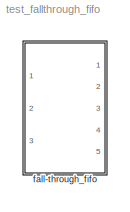
MODEL test_fallthrough_fifo
KIND model
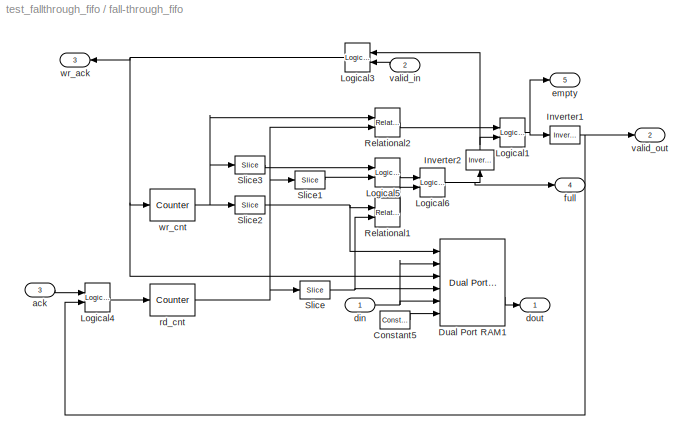
BLOCK [SubSystem] fall-through_fifo
  AttributesFormatString = Depth: 2
  MaskDescription = A rollback fifo behaves as a normal fifo, except that data which are written in have to be \"committed\" before they become available for readout.  Moreover, any data which are written in and have not been committed can be \"discarded\", and will never be made available for readout.
  MaskEnableString = on
  MaskIconFrame = on
  MaskIconOpaque = on
  MaskIconRotate = none
  MaskIconUnits = autoscale
  MaskInitialization = fmtstr = sprintf('Depth: %d', 2^depth_bits);\nset_param(gcb, 'AttributesFormatString', fmtstr);
  MaskPromptString = Fifo Depth (2^?):
  MaskStyleString = edit
  MaskToolTipString = on
  MaskTunableValueString = on
  MaskValueString = 1
  MaskVariables = depth_bits=@1;
  MaskVisibilityString = on
  MinAlgLoopOccurrences = off
  Ports = [3, 5]
  RTWSystemCode = Auto
  TreatAsAtomicUnit = off
BLOCK [Reference] fall-through_fifo/Constant5  REF=xbsIndex_r3/Constant
  Ports = [0, 1]
  SourceBlock = xbsIndex_r3/Constant
  SourceType = Xilinx Constant Block
  arith_type = Boolean
  bin_pt = 0
  carry = CIN
  const = 0
  dbl_ovrd = off
  equ = P=C
  explicit_period = on
  inp1 = P
  inp2 = PCIN>>17
  iostate = 0
  n_bits = 1
  opr = +
  opselect = C
  period = 1
BLOCK [Reference] fall-through_fifo/Dual Port RAM1  REF=xbsIndex_r3/Dual Port RAM
  Ports = [6, 2]
  SourceBlock = xbsIndex_r3/Dual Port RAM
  SourceType = Xilinx Dual Port Random Access Memory
  dbl_ovrd = off
  depth = 2^depth_bits
  distributed_mem = off
  explicit_period = off
  gen_core = off
  initVector = sin(pi*(0:15)/16)
  init_a = 0
  init_b = 0
  init_zero = on
  latency = 1
  mem_collision = off
  period = 1
  rst_a = off
  rst_b = off
  show_param = off
  use_rpm = off
  write_mode_A = Read After Write
  write_mode_B = Read After Write
  xl_area = [0, 0, 0, 0, 0, 0, 0]
  xl_use_area = off
BLOCK [Reference] fall-through_fifo/Inverter1  REF=xbsIndex_r3/Inverter
  Ports = [1, 1]
  SourceBlock = xbsIndex_r3/Inverter
  SourceType = Xilinx Inverter
  dbl_ovrd = off
  en = off
  explicit_period = off
  latency = 0
  period = 1
  show_param = off
  xl_area = [0, 0, 0, 0, 0, 0, 0]
  xl_use_area = off
BLOCK [Reference] fall-through_fifo/Inverter2  REF=xbsIndex_r3/Inverter
  Ports = [1, 1]
  SourceBlock = xbsIndex_r3/Inverter
  SourceType = Xilinx Inverter
  dbl_ovrd = off
  en = off
  explicit_period = off
  latency = 0
  period = 1
  show_param = off
  xl_area = [0, 0, 0, 0, 0, 0, 0]
  xl_use_area = off
BLOCK [Reference] fall-through_fifo/Logical1  REF=xbsIndex_r3/Logical
  Ports = [2, 1]
  SourceBlock = xbsIndex_r3/Logical
  SourceType = Xilinx Logical Block
  align_bp = on
  arith_type = Unsigned
  bin_pt = 2
  dbl_ovrd = off
  en = off
  explicit_period = off
  inputs = 2
  latency = 0
  logical_function = AND
  n_bits = 8
  period = 1
  precision = Full
  show_param = off
  xl_area = [0, 0, 0, 0, 0, 0, 0]
  xl_use_area = off
BLOCK [Reference] fall-through_fifo/Logical3  REF=xbsIndex_r3/Logical
  Ports = [2, 1]
  SourceBlock = xbsIndex_r3/Logical
  SourceType = Xilinx Logical Block
  align_bp = on
  arith_type = Unsigned
  bin_pt = 2
  dbl_ovrd = off
  en = off
  explicit_period = off
  inputs = 2
  latency = 0
  logical_function = AND
  n_bits = 8
  period = 1
  precision = Full
  show_param = off
  xl_area = [0, 0, 0, 0, 0, 0, 0]
  xl_use_area = off
BLOCK [Reference] fall-through_fifo/Logical4  REF=xbsIndex_r3/Logical
  Ports = [2, 1]
  SourceBlock = xbsIndex_r3/Logical
  SourceType = Xilinx Logical Block
  align_bp = on
  arith_type = Unsigned
  bin_pt = 2
  dbl_ovrd = off
  en = off
  explicit_period = off
  inputs = 2
  latency = 0
  logical_function = AND
  n_bits = 8
  period = 1
  precision = Full
  show_param = off
  xl_area = [0, 0, 0, 0, 0, 0, 0]
  xl_use_area = off
BLOCK [Reference] fall-through_fifo/Logical5  REF=xbsIndex_r3/Logical
  Ports = [2, 1]
  SourceBlock = xbsIndex_r3/Logical
  SourceType = Xilinx Logical Block
  align_bp = on
  arith_type = Unsigned
  bin_pt = 2
  dbl_ovrd = off
  en = off
  explicit_period = off
  inputs = 2
  latency = 0
  logical_function = XOR
  n_bits = 8
  period = 1
  precision = Full
  show_param = off
  xl_area = [0, 0, 0, 0, 0, 0, 0]
  xl_use_area = off
BLOCK [Reference] fall-through_fifo/Logical6  REF=xbsIndex_r3/Logical
  Ports = [2, 1]
  SourceBlock = xbsIndex_r3/Logical
  SourceType = Xilinx Logical Block
  align_bp = on
  arith_type = Unsigned
  bin_pt = 2
  dbl_ovrd = off
  en = off
  explicit_period = off
  inputs = 2
  latency = 0
  logical_function = AND
  n_bits = 8
  period = 1
  precision = Full
  show_param = off
  xl_area = [0, 0, 0, 0, 0, 0, 0]
  xl_use_area = off
BLOCK [Reference] fall-through_fifo/Relational1  REF=xbsIndex_r3/Relational
  Ports = [2, 1]
  SourceBlock = xbsIndex_r3/Relational
  SourceType = Xilinx Relational Block
  dbl_ovrd = off
  en = off
  explicit_period = on
  latency = 0
  mode = a=b
  period = 1
  show_param = off
  xl_area = [0, 0, 0, 0, 0, 0, 0]
  xl_use_area = off
BLOCK [Reference] fall-through_fifo/Relational2  REF=xbsIndex_r3/Relational
  Ports = [2, 1]
  SourceBlock = xbsIndex_r3/Relational
  SourceType = Xilinx Relational Block
  dbl_ovrd = off
  en = off
  explicit_period = on
  latency = 0
  mode = a=b
  period = 1
  show_param = off
  xl_area = [0, 0, 0, 0, 0, 0, 0]
  xl_use_area = off
BLOCK [Reference] fall-through_fifo/Slice  REF=xbsIndex_r3/Slice
  Ports = [1, 1]
  SourceBlock = xbsIndex_r3/Slice
  SourceType = Xilinx Slice Block
  base0 = LSB of Input
  base1 = MSB of Input
  bit0 = 0
  bit1 = -1
  boolean_output = off
  dbl_ovrd = off
  explicit_period = off
  mode = Two Bit Locations
  nbits = 1
  period = 1
BLOCK [Reference] fall-through_fifo/Slice1  REF=xbsIndex_r3/Slice
  Ports = [1, 1]
  SourceBlock = xbsIndex_r3/Slice
  SourceType = Xilinx Slice Block
  base0 = LSB of Input
  base1 = MSB of Input
  bit0 = 0
  bit1 = 0
  boolean_output = on
  dbl_ovrd = off
  explicit_period = off
  mode = Upper Bit Location + Width
  nbits = 1
  period = 1
BLOCK [Reference] fall-through_fifo/Slice2  REF=xbsIndex_r3/Slice
  Ports = [1, 1]
  SourceBlock = xbsIndex_r3/Slice
  SourceType = Xilinx Slice Block
  base0 = LSB of Input
  base1 = MSB of Input
  bit0 = 0
  bit1 = -1
  boolean_output = off
  dbl_ovrd = off
  explicit_period = off
  mode = Two Bit Locations
  nbits = 1
  period = 1
BLOCK [Reference] fall-through_fifo/Slice3  REF=xbsIndex_r3/Slice
  Ports = [1, 1]
  SourceBlock = xbsIndex_r3/Slice
  SourceType = Xilinx Slice Block
  base0 = LSB of Input
  base1 = MSB of Input
  bit0 = 0
  bit1 = 0
  boolean_output = on
  dbl_ovrd = off
  explicit_period = off
  mode = Upper Bit Location + Width
  nbits = 1
  period = 1
BLOCK [Inport] fall-through_fifo/ack
  IconDisplay = Port number
  LatchInput = off
  Port = 3
BLOCK [Inport] fall-through_fifo/din
  IconDisplay = Port number
  LatchInput = off
  Port = 1
BLOCK [Outport] fall-through_fifo/dout
  BusOutputAsStruct = off
  IconDisplay = Port number
BLOCK [Outport] fall-through_fifo/empty
  BusOutputAsStruct = off
  IconDisplay = Port number
  Port = 5
BLOCK [Outport] fall-through_fifo/full
  BusOutputAsStruct = off
  IconDisplay = Port number
  Port = 4
BLOCK [Reference] fall-through_fifo/rd_cnt  REF=xbsIndex_r3/Counter
  Ports = [1, 1]
  SourceBlock = xbsIndex_r3/Counter
  SourceType = Xilinx Counter Block
  arith_type = Unsigned
  bin_pt = 0
  cnt_by_val = 1
  cnt_to = Inf
  cnt_type = Free Running
  dbl_ovrd = off
  en = on
  explicit_period = on
  gen_core = off
  load_pin = off
  n_bits = depth_bits + 1
  operation = Up
  period = 1
  rst = off
  show_param = off
  start_count = 0
  use_rpm = on
  xl_area = [0, 0, 0, 0, 0, 0, 0]
  xl_use_area = off
BLOCK [Inport] fall-through_fifo/valid_in
  IconDisplay = Port number
  LatchInput = off
  Port = 2
BLOCK [Outport] fall-through_fifo/valid_out
  BusOutputAsStruct = off
  IconDisplay = Port number
  Port = 2
BLOCK [Outport] fall-through_fifo/wr_ack
  BusOutputAsStruct = off
  IconDisplay = Port number
  Port = 3
BLOCK [Reference] fall-through_fifo/wr_cnt  REF=xbsIndex_r3/Counter
  Ports = [1, 1]
  SourceBlock = xbsIndex_r3/Counter
  SourceType = Xilinx Counter Block
  arith_type = Unsigned
  bin_pt = 0
  cnt_by_val = 1
  cnt_to = Inf
  cnt_type = Free Running
  dbl_ovrd = off
  en = on
  explicit_period = on
  gen_core = off
  load_pin = off
  n_bits = depth_bits + 1
  operation = Up
  period = 1
  rst = off
  show_param = off
  start_count = 0
  use_rpm = on
  xl_area = [0, 0, 0, 0, 0, 0, 0]
  xl_use_area = off
LINE fall-through_fifo/Constant5:1 -> fall-through_fifo/Dual Port RAM1:6
LINE fall-through_fifo/Dual Port RAM1:2 -> fall-through_fifo/dout:1
NET fall-through_fifo/Inverter1:1 -> fall-through_fifo/Logical4:2, fall-through_fifo/valid_out:1
NET fall-through_fifo/Inverter2:1 -> fall-through_fifo/Logical1:2, fall-through_fifo/Logical3:1
NET fall-through_fifo/Logical1:1 -> fall-through_fifo/Inverter1:1, fall-through_fifo/empty:1
NET fall-through_fifo/Logical3:1 -> fall-through_fifo/Dual Port RAM1:3, fall-through_fifo/wr_ack:1, fall-through_fifo/wr_cnt:1
LINE fall-through_fifo/Logical4:1 -> fall-through_fifo/rd_cnt:1
LINE fall-through_fifo/Logical5:1 -> fall-through_fifo/Logical6:1
NET fall-through_fifo/Logical6:1 -> fall-through_fifo/Inverter2:1, fall-through_fifo/full:1
LINE fall-through_fifo/Relational1:1 -> fall-through_fifo/Logical6:2
LINE fall-through_fifo/Relational2:1 -> fall-through_fifo/Logical1:1
LINE fall-through_fifo/Slice1:1 -> fall-through_fifo/Logical5:2
NET fall-through_fifo/Slice2:1 -> fall-through_fifo/Dual Port RAM1:1, fall-through_fifo/Relational1:1
LINE fall-through_fifo/Slice3:1 -> fall-through_fifo/Logical5:1
NET fall-through_fifo/Slice:1 -> fall-through_fifo/Dual Port RAM1:4, fall-through_fifo/Relational1:2
LINE fall-through_fifo/ack:1 -> fall-through_fifo/Logical4:1
NET fall-through_fifo/din:1 -> fall-through_fifo/Dual Port RAM1:2, fall-through_fifo/Dual Port RAM1:5
NET fall-through_fifo/rd_cnt:1 -> fall-through_fifo/Relational2:2, fall-through_fifo/Slice1:1, fall-through_fifo/Slice:1
LINE fall-through_fifo/valid_in:1 -> fall-through_fifo/Logical3:2
NET fall-through_fifo/wr_cnt:1 -> fall-through_fifo/Relational2:1, fall-through_fifo/Slice2:1, fall-through_fifo/Slice3:1
note: NET lines group one-source signal fan-out (src -> all destinations, sorted); 1:1 wires keep LINE
